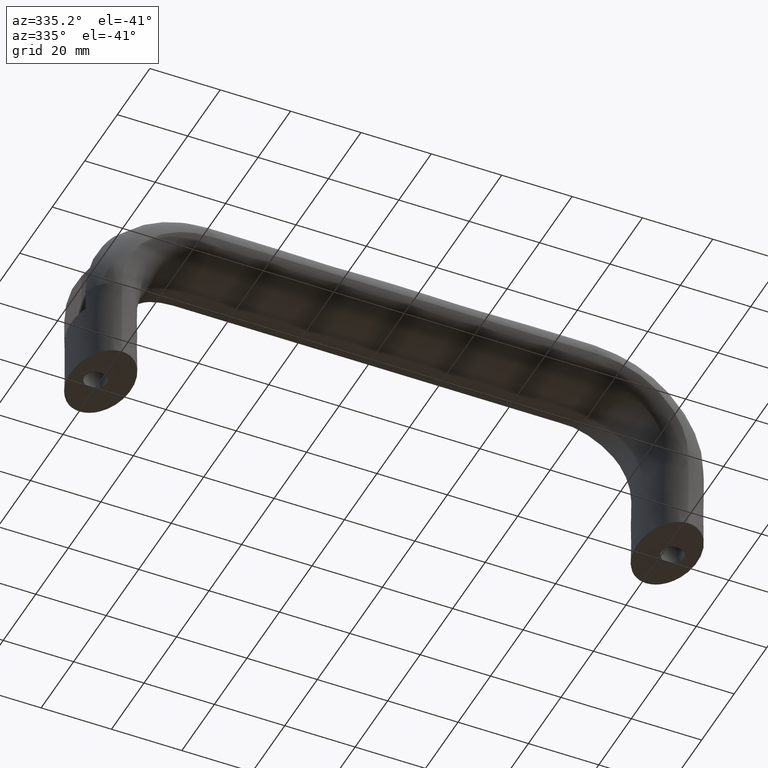
[diagram: clean part render]
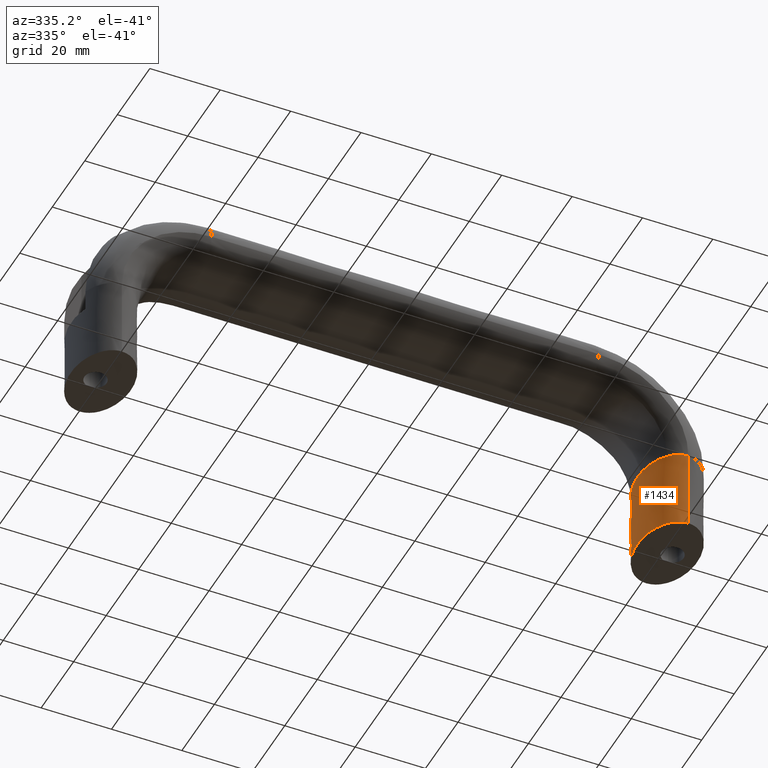
[diagram: same view with one face highlighted and labeled with its STEP entity id]
A machine part, auxiliary view. The second image highlights one B-rep face of the part: STEP entity #1434.
In plain terms, the highlighted face is a freeform B-spline surface patch.
Its self-contained STEP definition (entity closure, byte-faithful):
#1215=CARTESIAN_POINT('',(166.119074295760410,11.762630261538520,23.0));
#1216=VERTEX_POINT('',#1215);
#1245=CARTESIAN_POINT('',(162.500000000000000,-13.0,23.0));
#1246=VERTEX_POINT('',#1245);
#1258=CARTESIAN_POINT('',(162.500000000000000,-13.0,-6.661338E-016));
#1259=VERTEX_POINT('',#1258);
#1260=CARTESIAN_POINT('',(162.500000000000000,-13.0,23.0));
#1261=CARTESIAN_POINT('',(162.500075127235500,-13.0,15.333333335022900));
#1262=CARTESIAN_POINT('',(162.500000000000000,-13.0,7.666666665397365));
#1263=CARTESIAN_POINT('',(162.500000000000000,-13.0,6.754622E-030));
#1264=B_SPLINE_CURVE_WITH_KNOTS('',3,(#1260,#1261,#1262,#1263),.UNSPECIFIED.,.F.,.U.,(4,4),(0.902588029651666,1.0),.UNSPECIFIED.);
#1265=EDGE_CURVE('',#1246,#1259,#1264,.T.);
#1267=CARTESIAN_POINT('',(166.119225427748890,11.762851135245620,-1.134399E-015));
#1268=VERTEX_POINT('',#1267);
#1287=CARTESIAN_POINT('',(166.119074295760410,11.762630261538520,23.0));
#1288=CARTESIAN_POINT('',(166.119204791679690,11.762703886107539,15.333333335254490));
#1289=CARTESIAN_POINT('',(166.119175050419390,11.762777510676599,7.666666665223429));
#1290=CARTESIAN_POINT('',(166.119225427748890,11.762851135245620,-1.134399E-015));
#1291=B_SPLINE_CURVE_WITH_KNOTS('',3,(#1287,#1288,#1289,#1290),.UNSPECIFIED.,.F.,.U.,(4,4),(0.902588029651666,1.0),.UNSPECIFIED.);
#1292=EDGE_CURVE('',#1216,#1268,#1291,.T.);
#1297=CARTESIAN_POINT('',(162.500000000000000,-13.0,23.0));
#1298=CARTESIAN_POINT('',(161.387352601853510,-13.0,23.0));
#1299=CARTESIAN_POINT('',(160.275142982945990,-12.661644796688099,23.0));
#1300=CARTESIAN_POINT('',(158.219238666847500,-11.359223048605340,23.0));
#1301=CARTESIAN_POINT('',(157.276352880213490,-10.395668951176340,23.0));
#1302=CARTESIAN_POINT('',(154.916071319316500,-6.785826563922671,23.0));
#1303=CARTESIAN_POINT('',(154.0,-3.403392041388941,23.0));
#1304=CARTESIAN_POINT('',(154.0,3.403392041388945,23.0));
#1305=CARTESIAN_POINT('',(154.916071319316500,6.785826563922680,23.0));
#1306=CARTESIAN_POINT('',(157.276352880213490,10.395668951176340,23.0));
#1307=CARTESIAN_POINT('',(158.219238666847500,11.359223048605340,23.0));
#1308=CARTESIAN_POINT('',(160.275142982945990,12.661644796688099,23.0));
#1309=CARTESIAN_POINT('',(161.387352601853510,13.0,23.0));
#1310=CARTESIAN_POINT('',(163.612647398146490,13.0,23.0));
#1311=CARTESIAN_POINT('',(164.724857017054010,12.661644796688099,23.0));
#1312=CARTESIAN_POINT('',(165.876163434069210,11.932288617761770,23.0));
#1313=CARTESIAN_POINT('',(165.998292737286700,11.849645570460019,23.0));
#1314=CARTESIAN_POINT('',(166.119074294985410,11.762630262096810,23.0));
#1315=CARTESIAN_POINT('',(162.500075127235500,-13.0,15.333333335022900));
#1316=CARTESIAN_POINT('',(161.387426088496000,-13.0,15.333333334949151));
#1317=CARTESIAN_POINT('',(160.275214717355510,-12.661644796688099,15.333333334873000));
#1318=CARTESIAN_POINT('',(158.219306942801010,-11.359223048605340,15.333333334728099));
#1319=CARTESIAN_POINT('',(157.276419466173000,-10.395668951176340,15.333333334659899));
#1320=CARTESIAN_POINT('',(154.916133352742010,-6.785826563922671,15.333333334484699));
#1321=CARTESIAN_POINT('',(154.000060130252000,-3.403392041388941,15.333333334415149));
#1322=CARTESIAN_POINT('',(154.000060130252000,3.403392041388945,15.333333334415149));
#1323=CARTESIAN_POINT('',(154.916133352742010,6.785826563922680,15.333333334484699));
#1324=CARTESIAN_POINT('',(157.276419466054510,10.395668951176340,15.333333334659899));
#1325=CARTESIAN_POINT('',(158.219306942801010,11.359223048605340,15.333333334728099));
#1326=CARTESIAN_POINT('',(160.275214717355510,12.661644796688099,15.333333334873000));
#1327=CARTESIAN_POINT('',(161.387426088496000,13.0,15.333333334949151));
#1328=CARTESIAN_POINT('',(163.612724165975010,13.0,15.333333335096651));
#1329=CARTESIAN_POINT('',(164.724935321957990,12.661644796688099,15.333333335168000));
#1330=CARTESIAN_POINT('',(165.876243238974300,11.932288617761770,15.333333335239480));
#1331=CARTESIAN_POINT('',(165.998372700365710,11.849645570460019,15.333333335247040));
#1332=CARTESIAN_POINT('',(166.119154413575300,11.762630262096810,15.333333335254490));
#1333=CARTESIAN_POINT('',(162.500000000000000,-13.0,7.666666665397365));
#1334=CARTESIAN_POINT('',(161.387352601853510,-13.0,7.666666665452760));
#1335=CARTESIAN_POINT('',(160.275142982945990,-12.661644796688099,7.666666665509951));
#1336=CARTESIAN_POINT('',(158.219238666847500,-11.359223048605340,7.666666665618780));
#1337=CARTESIAN_POINT('',(157.276352880213010,-10.395668951176340,7.666666665669980));
#1338=CARTESIAN_POINT('',(154.916071319316500,-6.785826563922671,7.666666665801579));
#1339=CARTESIAN_POINT('',(154.0,-3.403392041388941,7.666666665853820));
#1340=CARTESIAN_POINT('',(154.0,3.403392041388945,7.666666665853820));
#1341=CARTESIAN_POINT('',(154.916071319316500,6.785826563922680,7.666666665801579));
#1342=CARTESIAN_POINT('',(157.276352880213010,10.395668951176340,7.666666665669990));
#1343=CARTESIAN_POINT('',(158.219238666847500,11.359223048605340,7.666666665618780));
#1344=CARTESIAN_POINT('',(160.275142982945990,12.661644796688099,7.666666665509951));
#1345=CARTESIAN_POINT('',(161.387352601853510,13.0,7.666666665452760));
#1346=CARTESIAN_POINT('',(163.612647398146490,13.0,7.666666665341970));
#1347=CARTESIAN_POINT('',(164.724857017054010,12.661644796688099,7.666666665288400));
#1348=CARTESIAN_POINT('',(165.876163434069210,11.932288617761770,7.666666665234701));
#1349=CARTESIAN_POINT('',(165.998292737286700,11.849645570460019,7.666666665229025));
#1350=CARTESIAN_POINT('',(166.119074294985410,11.762630262096810,7.666666665223430));
#1351=CARTESIAN_POINT('',(162.500000000000000,-13.0,6.752792E-030));
#1352=CARTESIAN_POINT('',(161.387352601853510,-13.0,1.513832E-016));
#1353=CARTESIAN_POINT('',(160.275142982945990,-12.661644796688099,3.027068E-016));
#1354=CARTESIAN_POINT('',(158.219238666847500,-11.359223048605340,5.824264E-016));
#1355=CARTESIAN_POINT('',(157.276352880213010,-10.395668951176340,7.107124E-016));
#1356=CARTESIAN_POINT('',(154.916071319316500,-6.785826563922671,1.031845E-015));
#1357=CARTESIAN_POINT('',(154.0,-3.403392041388941,1.156482E-015));
#1358=CARTESIAN_POINT('',(154.0,3.403392041388945,1.156482E-015));
#1359=CARTESIAN_POINT('',(154.916071319316500,6.785826563922680,1.031845E-015));
#1360=CARTESIAN_POINT('',(157.276352880213010,10.395668951176340,7.107124E-016));
#1361=CARTESIAN_POINT('',(158.219238666847500,11.359223048605340,5.824264E-016));
#1362=CARTESIAN_POINT('',(160.275142982945990,12.661644796688099,3.027068E-016));
#1363=CARTESIAN_POINT('',(161.387352601853510,13.0,1.513832E-016));
#1364=CARTESIAN_POINT('',(163.612647398146490,13.0,-1.513832E-016));
#1365=CARTESIAN_POINT('',(164.724857017054010,12.661644796688099,-3.027068E-016));
#1366=CARTESIAN_POINT('',(165.876163434069210,11.932288617761770,-4.593498E-016));
#1367=CARTESIAN_POINT('',(165.998292737286700,11.849645570460019,-4.759663E-016));
#1368=CARTESIAN_POINT('',(166.119074294985410,11.762630262096810,-4.923995E-016));
#1369=B_SPLINE_SURFACE_WITH_KNOTS('',3,3,((#1297,#1315,#1333,#1351),(#1298,#1316,#1334,#1352),(#1299,#1317,#1335,#1353),(#1300,#1318,#1336,#1354),(#1301,#1319,#1337,#1355),(#1302,#1320,#1338,#1356),(#1303,#1321,#1339,#1357),(#1304,#1322,#1340,#1358),(#1305,#1323,#1341,#1359),(#1306,#1324,#1342,#1360),(#1307,#1325,#1343,#1361),(#1308,#1326,#1344,#1362),(#1309,#1327,#1345,#1363),(#1310,#1328,#1346,#1364),(#1311,#1329,#1347,#1365),(#1312,#1330,#1348,#1366),(#1313,#1331,#1349,#1367),(#1314,#1332,#1350,#1368)),.UNSPECIFIED.,.F.,.F.,.U.,(4,2,2,2,2,2,2,2,4),(4,4),(0.0,5.001747901106371,10.003495802212740,20.006991604425480,30.010487406638230,35.012235307744596,40.013983208850973,45.015731109957343,45.615940858090099),(0.0,23.000000002060698),.UNSPECIFIED.);
#1370=CARTESIAN_POINT('',(157.504097342526790,-10.516608837180700,23.0));
#1371=VERTEX_POINT('',#1370);
#1372=CARTESIAN_POINT('',(157.504097342526790,-10.516608837180700,23.0));
#1373=CARTESIAN_POINT('',(157.143980818374300,-10.116656519782079,23.0));
#1374=CARTESIAN_POINT('',(156.804296567852110,-9.673700473447189,23.0));
#1375=CARTESIAN_POINT('',(154.916071319316500,-6.785826563922671,23.0));
#1376=CARTESIAN_POINT('',(154.0,-3.403392041388941,23.0));
#1377=CARTESIAN_POINT('',(154.0,3.403392041388945,23.0));
#1378=CARTESIAN_POINT('',(154.916071319316500,6.785826563922680,23.0));
#1379=CARTESIAN_POINT('',(157.276352880213490,10.395668951176340,23.0));
#1380=CARTESIAN_POINT('',(158.219238666847500,11.359223048605340,23.0));
#1381=CARTESIAN_POINT('',(160.275142982945990,12.661644796688099,23.0));
#1382=CARTESIAN_POINT('',(161.387352601853510,13.0,23.0));
#1383=CARTESIAN_POINT('',(163.612647398146490,13.0,23.0));
#1384=CARTESIAN_POINT('',(164.724857017054010,12.661644796688099,23.0));
#1385=CARTESIAN_POINT('',(165.876163434596800,11.932288617427510,23.0));
#1386=CARTESIAN_POINT('',(165.998292738331490,11.849645569753029,23.0));
#1387=CARTESIAN_POINT('',(166.119074295760410,11.762630261538520,23.0));
#1388=B_SPLINE_CURVE_WITH_KNOTS('',3,(#1372,#1373,#1374,#1375,#1376,#1377,#1378,#1379,#1380,#1381,#1382,#1383,#1384,#1385,#1386,#1387),.UNSPECIFIED.,.F.,.U.,(4,2,2,2,2,2,2,4),(0.319975003088034,0.349979169228025,0.500000000014760,0.650020830801495,0.725031246194863,0.800041661588230,0.875052076981598,0.884053326867304),.UNSPECIFIED.);
#1389=EDGE_CURVE('',#1371,#1216,#1388,.T.);
#1390=ORIENTED_EDGE('',*,*,#1389,.T.);
#1391=ORIENTED_EDGE('',*,*,#1292,.T.);
#1392=CARTESIAN_POINT('',(162.500000000000000,13.0,6.572236E-030));
#1393=VERTEX_POINT('',#1392);
#1394=CARTESIAN_POINT('',(162.500000000000000,13.0,6.572236E-030));
#1395=CARTESIAN_POINT('',(164.190749000270810,12.999710136311061,-4.985885E-016));
#1396=CARTESIAN_POINT('',(165.752670614694210,12.010240780391420,-1.012880E-015));
#1397=CARTESIAN_POINT('',(165.938538340173010,11.892494526727010,-1.074080E-015));
#1398=CARTESIAN_POINT('',(166.119225427748890,11.762851135245620,-1.134399E-015));
#1399=B_SPLINE_CURVE_WITH_KNOTS('',2,(#1394,#1395,#1396,#1397,#1398),.UNSPECIFIED.,.F.,.U.,(3,2,3),(0.0,0.125000000000000,0.139878321147073),.UNSPECIFIED.);
#1400=EDGE_CURVE('',#1393,#1268,#1399,.T.);
#1401=ORIENTED_EDGE('',*,*,#1400,.F.);
#1402=CARTESIAN_POINT('',(162.500000000000000,-12.999999999999989,1.011113E-030));
#1403=CARTESIAN_POINT('',(160.809185756169000,-12.999801080675480,2.300467E-016));
#1404=CARTESIAN_POINT('',(159.247190824896710,-12.010433922646721,4.425666E-016));
#1405=CARTESIAN_POINT('',(157.685552516527200,-11.021292649466060,6.550380E-016));
#1406=CARTESIAN_POINT('',(156.489592359914300,-9.192388155425114,8.177565E-016));
#1407=CARTESIAN_POINT('',(155.294325751856600,-7.364544260319935,9.803806E-016));
#1408=CARTESIAN_POINT('',(154.647023973654000,-4.974884620746172,1.068450E-015));
#1409=CARTESIAN_POINT('',(154.000097571871290,-2.586610767385947,1.156469E-015));
#1410=CARTESIAN_POINT('',(154.0,-2.974780E-015,1.156482E-015));
#1411=CARTESIAN_POINT('',(153.999902484711410,2.585110767291353,1.156496E-015));
#1412=CARTESIAN_POINT('',(154.647023973654000,4.974884620746177,1.068450E-015));
#1413=CARTESIAN_POINT('',(155.293770190733310,7.363272621772647,9.804562E-016));
#1414=CARTESIAN_POINT('',(156.489592359914300,9.192388155425123,8.177565E-016));
#1415=CARTESIAN_POINT('',(157.684721060532210,11.020442967714880,6.551512E-016));
#1416=CARTESIAN_POINT('',(159.247190824896710,12.010433922646740,4.425666E-016));
#1417=CARTESIAN_POINT('',(160.808675976720710,12.999801020700581,2.301160E-016));
#1418=CARTESIAN_POINT('',(162.499999999999890,13.000000000000011,1.412490E-029));
#1419=B_SPLINE_CURVE_WITH_KNOTS('',2,(#1402,#1403,#1404,#1405,#1406,#1407,#1408,#1409,#1410,#1411,#1412,#1413,#1414,#1415,#1416,#1417,#1418),.UNSPECIFIED.,.F.,.U.,(3,2,2,2,2,2,2,2,3),(0.0,0.125000000000000,0.250000000000000,0.375000000000000,0.500000000000000,0.625000000000000,0.750000000000000,0.875000000000000,1.0),.UNSPECIFIED.);
#1420=EDGE_CURVE('',#1259,#1393,#1419,.T.);
#1421=ORIENTED_EDGE('',*,*,#1420,.F.);
#1422=ORIENTED_EDGE('',*,*,#1265,.F.);
#1423=CARTESIAN_POINT('',(162.500000000000000,-13.0,23.0));
#1424=CARTESIAN_POINT('',(161.387352601853510,-13.0,23.0));
#1425=CARTESIAN_POINT('',(160.275142982945990,-12.661644796688099,23.0));
#1426=CARTESIAN_POINT('',(158.630419529829400,-11.619707398071210,23.0));
#1427=CARTESIAN_POINT('',(158.044272128495090,-11.116537312989440,23.0));
#1428=CARTESIAN_POINT('',(157.504097342526790,-10.516608837180700,23.0));
#1429=B_SPLINE_CURVE_WITH_KNOTS('',3,(#1423,#1424,#1425,#1426,#1427,#1428),.UNSPECIFIED.,.F.,.U.,(4,2,4),(0.199958338441289,0.274968753834657,0.319975003088034),.UNSPECIFIED.);
#1430=EDGE_CURVE('',#1246,#1371,#1429,.T.);
#1431=ORIENTED_EDGE('',*,*,#1430,.T.);
#1432=EDGE_LOOP('',(#1390,#1391,#1401,#1421,#1422,#1431));
#1433=FACE_OUTER_BOUND('',#1432,.T.);
#1434=ADVANCED_FACE('',(#1433),#1369,.T.);